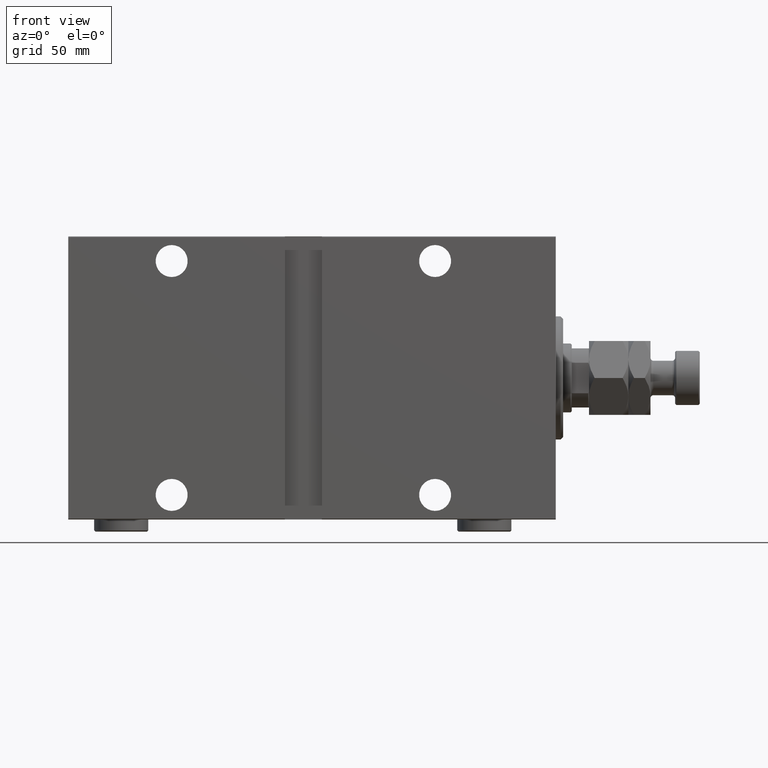
[diagram: clean part render]
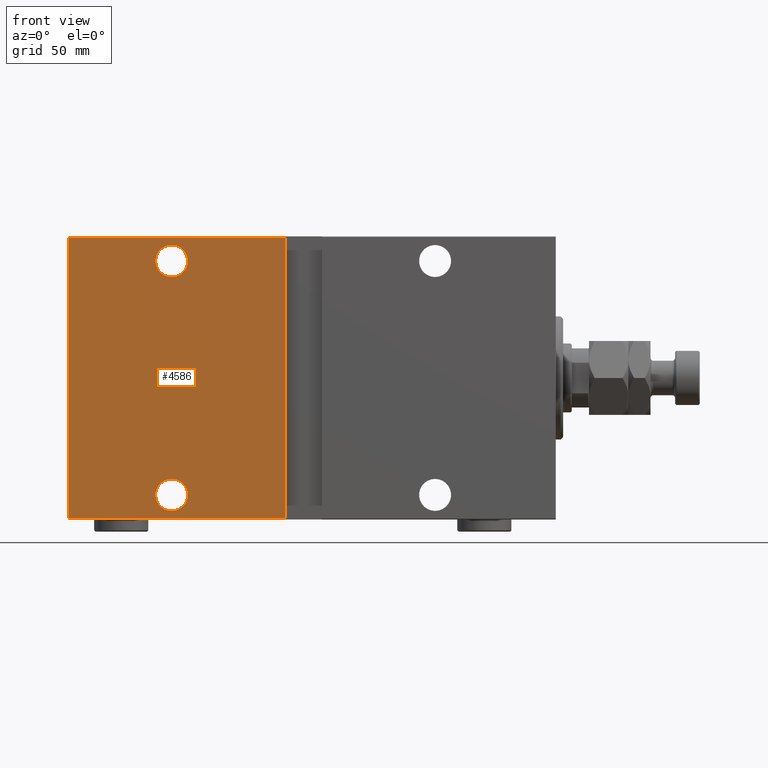
[diagram: same view with one face highlighted and labeled with its STEP entity id]
A machine part, front view. The second image highlights one B-rep face of the part: STEP entity #4586.
In plain terms, the highlighted planar face has unit normal (0, 1, 0).
Its self-contained STEP definition (entity closure, byte-faithful):
#855 = DIRECTION ( 'NONE',  ( 0.000000000000000000, -0.000000000000000000, -1.000000000000000000 ) ) ;
#1041 = VECTOR ( 'NONE', #30590, 1000.000000000000000 ) ;
#1480 = VERTEX_POINT ( 'NONE', #40252 ) ;
#1836 = EDGE_CURVE ( 'NONE', #42809, #20880, #4018, .T. ) ;
#1889 = PLANE ( 'NONE',  #15177 ) ;
#2116 = VERTEX_POINT ( 'NONE', #3961 ) ;
#2191 = CARTESIAN_POINT ( 'NONE',  ( 198.0000000000000000, 45.00000000000001421, -57.20000000000006679 ) ) ;
#2780 = CIRCLE ( 'NONE', #14683, 6.500000000000012434 ) ;
#3961 = CARTESIAN_POINT ( 'NONE',  ( 155.9999999999999716, 45.00000000000000711, -41.00000000000000000 ) ) ;
#4018 = LINE ( 'NONE', #10546, #6236 ) ;
#4114 = CARTESIAN_POINT ( 'NONE',  ( 155.9999999999999716, 45.00000000000000711, -47.50000000000001421 ) ) ;
#4586 = ADVANCED_FACE ( 'NONE', ( #40768, #5377, #19570 ), #1889, .F. ) ;
#4608 = VERTEX_POINT ( 'NONE', #6764 ) ;
#5197 = EDGE_CURVE ( 'NONE', #31043, #4608, #9844, .T. ) ;
#5377 = FACE_BOUND ( 'NONE', #37576, .T. ) ;
#5993 = ORIENTED_EDGE ( 'NONE', *, *, #44943, .T. ) ;
#6236 = VECTOR ( 'NONE', #21249, 1000.000000000000000 ) ;
#6764 = CARTESIAN_POINT ( 'NONE',  ( 109.9999999999999716, 45.00000000000002132, -57.20000000000006679 ) ) ;
#6972 = ORIENTED_EDGE ( 'NONE', *, *, #13438, .F. ) ;
#8756 = DIRECTION ( 'NONE',  ( 0.000000000000000000, 0.000000000000000000, -1.000000000000000000 ) ) ;
#9655 = VERTEX_POINT ( 'NONE', #24989 ) ;
#9844 = LINE ( 'NONE', #2191, #1041 ) ;
#10546 = CARTESIAN_POINT ( 'NONE',  ( 198.0000000000000000, 45.00000000000001421, 57.20000000000001705 ) ) ;
#11934 = CARTESIAN_POINT ( 'NONE',  ( 155.9999999999999716, 45.00000000000002132, 47.49999999999999289 ) ) ;
#12462 = DIRECTION ( 'NONE',  ( 0.000000000000000000, -1.000000000000000000, 0.000000000000000000 ) ) ;
#12989 = DIRECTION ( 'NONE',  ( 0.000000000000000000, -1.000000000000000000, 0.000000000000000000 ) ) ;
#13438 = EDGE_CURVE ( 'NONE', #42809, #4608, #37877, .T. ) ;
#13712 = EDGE_CURVE ( 'NONE', #1480, #34110, #2780, .T. ) ;
#14130 = CARTESIAN_POINT ( 'NONE',  ( 109.9999999999999716, 45.00000000000002132, -57.50000000000001421 ) ) ;
#14683 = AXIS2_PLACEMENT_3D ( 'NONE', #22942, #12462, #23400 ) ;
#15046 = DIRECTION ( 'NONE',  ( 0.000000000000000000, -1.000000000000000000, 0.000000000000000000 ) ) ;
#15177 = AXIS2_PLACEMENT_3D ( 'NONE', #24459, #22281, #855 ) ;
#15442 = DIRECTION ( 'NONE',  ( 0.000000000000000000, 0.000000000000000000, -1.000000000000000000 ) ) ;
#16933 = AXIS2_PLACEMENT_3D ( 'NONE', #27198, #12989, #27435 ) ;
#17169 = DIRECTION ( 'NONE',  ( -1.206764157201257045E-16, 1.206764157201257045E-16, -1.000000000000000000 ) ) ;
#19570 = FACE_OUTER_BOUND ( 'NONE', #39090, .T. ) ;
#20880 = VERTEX_POINT ( 'NONE', #42349 ) ;
#21249 = DIRECTION ( 'NONE',  ( 1.000000000000000000, 0.000000000000000000, 0.000000000000000000 ) ) ;
#22145 = CIRCLE ( 'NONE', #16933, 6.500000000000019540 ) ;
#22281 = DIRECTION ( 'NONE',  ( 0.000000000000000000, -1.000000000000000000, 0.000000000000000000 ) ) ;
#22437 = EDGE_CURVE ( 'NONE', #34110, #1480, #45319, .T. ) ;
#22942 = CARTESIAN_POINT ( 'NONE',  ( 155.9999999999999716, 45.00000000000002132, 47.49999999999999289 ) ) ;
#23308 = LINE ( 'NONE', #34023, #34187 ) ;
#23400 = DIRECTION ( 'NONE',  ( 0.000000000000000000, 0.000000000000000000, -1.000000000000000000 ) ) ;
#23943 = EDGE_CURVE ( 'NONE', #31043, #20880, #23308, .T. ) ;
#23984 = ORIENTED_EDGE ( 'NONE', *, *, #22437, .T. ) ;
#24459 = CARTESIAN_POINT ( 'NONE',  ( 198.0000000000000000, 45.00000000000001421, -57.50000000000000711 ) ) ;
#24989 = CARTESIAN_POINT ( 'NONE',  ( 155.9999999999999716, 45.00000000000000711, -54.00000000000003553 ) ) ;
#27198 = CARTESIAN_POINT ( 'NONE',  ( 155.9999999999999716, 45.00000000000000711, -47.50000000000001421 ) ) ;
#27435 = DIRECTION ( 'NONE',  ( 0.000000000000000000, 0.000000000000000000, -1.000000000000000000 ) ) ;
#29877 = DIRECTION ( 'NONE',  ( 0.000000000000000000, -1.000000000000000000, 0.000000000000000000 ) ) ;
#30109 = ORIENTED_EDGE ( 'NONE', *, *, #23943, .F. ) ;
#30228 = ORIENTED_EDGE ( 'NONE', *, *, #1836, .T. ) ;
#30590 = DIRECTION ( 'NONE',  ( -1.000000000000000000, 0.000000000000000000, 0.000000000000000000 ) ) ;
#31043 = VERTEX_POINT ( 'NONE', #33089 ) ;
#31773 = VECTOR ( 'NONE', #17169, 1000.000000000000000 ) ;
#33065 = CARTESIAN_POINT ( 'NONE',  ( 109.9999999999999858, 45.00000000000000711, 57.19999999999998153 ) ) ;
#33089 = CARTESIAN_POINT ( 'NONE',  ( 198.0000000000000000, 45.00000000000001421, -57.20000000000006679 ) ) ;
#34023 = CARTESIAN_POINT ( 'NONE',  ( 198.0000000000000000, 45.00000000000001421, -57.50000000000000711 ) ) ;
#34110 = VERTEX_POINT ( 'NONE', #34262 ) ;
#34187 = VECTOR ( 'NONE', #41228, 1000.000000000000000 ) ;
#34262 = CARTESIAN_POINT ( 'NONE',  ( 155.9999999999999716, 45.00000000000002132, 40.99999999999997868 ) ) ;
#35877 = EDGE_LOOP ( 'NONE', ( #37294, #5993 ) ) ;
#37029 = CIRCLE ( 'NONE', #41487, 6.500000000000019540 ) ;
#37294 = ORIENTED_EDGE ( 'NONE', *, *, #44691, .T. ) ;
#37576 = EDGE_LOOP ( 'NONE', ( #42481, #23984 ) ) ;
#37877 = LINE ( 'NONE', #14130, #31773 ) ;
#39090 = EDGE_LOOP ( 'NONE', ( #30109, #45689, #6972, #30228 ) ) ;
#40252 = CARTESIAN_POINT ( 'NONE',  ( 155.9999999999999716, 45.00000000000002132, 54.00000000000000711 ) ) ;
#40768 = FACE_BOUND ( 'NONE', #35877, .T. ) ;
#41228 = DIRECTION ( 'NONE',  ( 0.000000000000000000, 0.000000000000000000, 1.000000000000000000 ) ) ;
#41487 = AXIS2_PLACEMENT_3D ( 'NONE', #4114, #15046, #8756 ) ;
#42349 = CARTESIAN_POINT ( 'NONE',  ( 198.0000000000000000, 45.00000000000001421, 57.19999999999998863 ) ) ;
#42481 = ORIENTED_EDGE ( 'NONE', *, *, #13712, .T. ) ;
#42809 = VERTEX_POINT ( 'NONE', #33065 ) ;
#43821 = AXIS2_PLACEMENT_3D ( 'NONE', #11934, #29877, #15442 ) ;
#44691 = EDGE_CURVE ( 'NONE', #2116, #9655, #22145, .T. ) ;
#44943 = EDGE_CURVE ( 'NONE', #9655, #2116, #37029, .T. ) ;
#45319 = CIRCLE ( 'NONE', #43821, 6.500000000000012434 ) ;
#45689 = ORIENTED_EDGE ( 'NONE', *, *, #5197, .T. ) ;